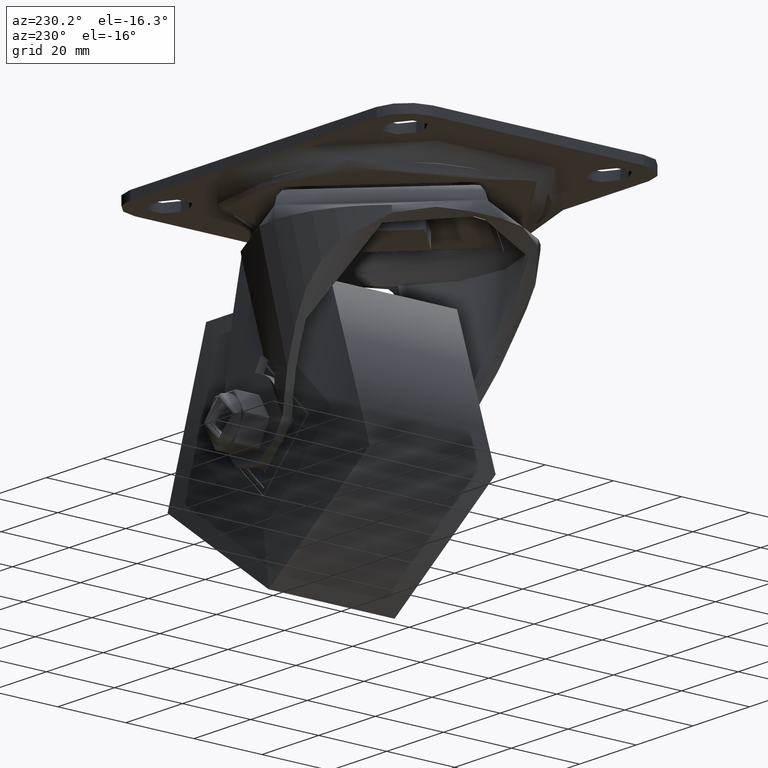
[diagram: clean part render]
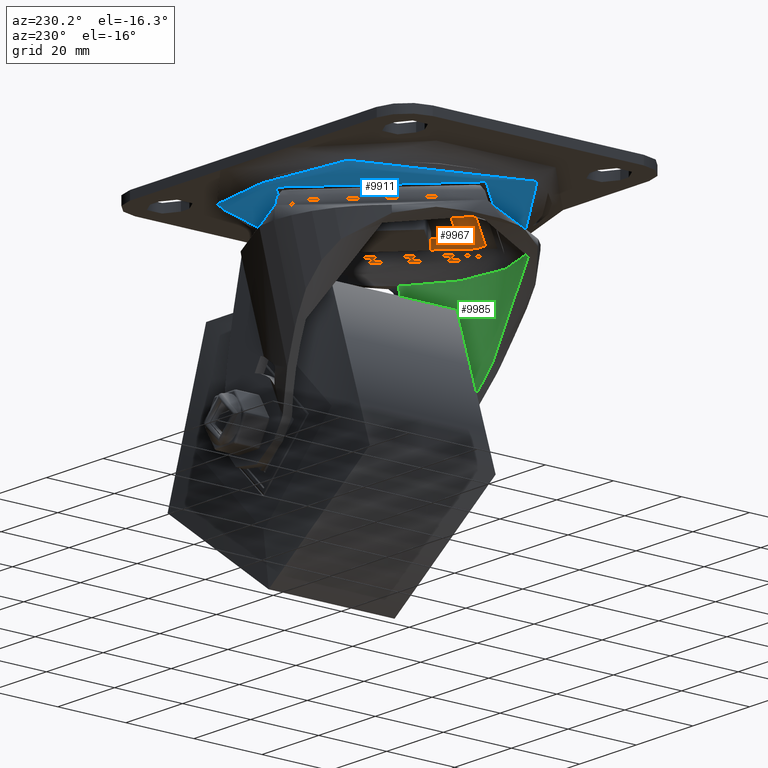
[diagram: same view with three faces highlighted in distinct colors, each labeled with its STEP entity id]
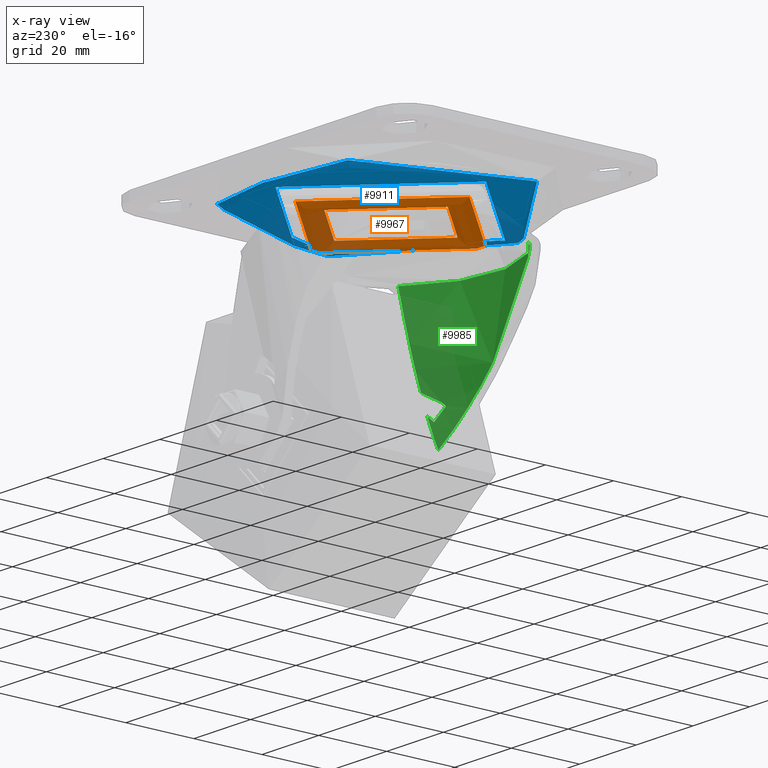
[diagram: x-ray of the same camera — body ghosted, the three highlighted faces saturated]
A machine part, auxiliary view with three faces highlighted in distinct colors.
The next image is the same camera in x-ray (body ghosted, the three faces saturated) — at least one of them is partly hidden behind the body in this view.
Their STEP definitions:

[orange] entity #9967 — the highlighted toroidal blend (fillet) surface has major radius 24.1 mm and minor (blend) radius 6.3 mm.
#2627=FACE_OUTER_BOUND('',#3252,.T.);
#3252=EDGE_LOOP('',(#7144,#7145,#7146,#7147));
#3968=CIRCLE('',#10853,27.9327535793476);
#3969=CIRCLE('',#10854,6.29999999999998);
#3970=CIRCLE('',#10855,19.7953513499938);
#4482=VERTEX_POINT('',#14827);
#4483=VERTEX_POINT('',#14829);
#5502=EDGE_CURVE('',#4482,#4482,#3968,.T.);
#5503=EDGE_CURVE('',#4482,#4483,#3969,.T.);
#5504=EDGE_CURVE('',#4483,#4483,#3970,.T.);
#7144=ORIENTED_EDGE('',*,*,#5502,.T.);
#7145=ORIENTED_EDGE('',*,*,#5503,.T.);
#7146=ORIENTED_EDGE('',*,*,#5504,.F.);
#7147=ORIENTED_EDGE('',*,*,#5503,.F.);
#9898=TOROIDAL_SURFACE('',#10852,24.1000000000001,6.29999999999998);
#9967=ADVANCED_FACE('',(#2627),#9898,.T.);
#10852=AXIS2_PLACEMENT_3D('',#14826,#12127,#12128);
#10853=AXIS2_PLACEMENT_3D('',#14828,#12129,#12130);
#10854=AXIS2_PLACEMENT_3D('',#14830,#12131,#12132);
#10855=AXIS2_PLACEMENT_3D('',#14831,#12133,#12134);
#12127=DIRECTION('center_axis',(0.,0.,1.));
#12128=DIRECTION('ref_axis',(-1.,0.,0.));
#12129=DIRECTION('center_axis',(0.,0.,-1.));
#12130=DIRECTION('ref_axis',(-1.,0.,0.));
#12131=DIRECTION('center_axis',(0.,1.,0.));
#12132=DIRECTION('ref_axis',(1.,0.,0.));
#12133=DIRECTION('center_axis',(0.,0.,-1.));
#12134=DIRECTION('ref_axis',(-1.,0.,0.));
#14826=CARTESIAN_POINT('Origin',(568.740824994599,-462.775587103942,-5.15782014433239));
#14827=CARTESIAN_POINT('',(596.673578573947,-462.775587103942,-10.1578201443323));
#14828=CARTESIAN_POINT('Origin',(568.740824994599,-462.775587103942,-10.1578201443323));
#14829=CARTESIAN_POINT('',(588.536176344593,-462.775587103942,-9.7578201443323));
#14830=CARTESIAN_POINT('Origin',(592.840824994599,-462.775587103942,-5.15782014433239));
#14831=CARTESIAN_POINT('Origin',(568.740824994599,-462.775587103942,-9.7578201443323));

[blue] entity #9911 — the highlighted toroidal blend (fillet) surface has major radius 35.4376 mm and minor (blend) radius 4.6641 mm.
#2571=FACE_OUTER_BOUND('',#3183,.T.);
#3183=EDGE_LOOP('',(#6883,#6884,#6885,#6886));
#3900=CIRCLE('',#10727,33.7552232642054);
#3902=CIRCLE('',#10730,39.1662577977539);
#3903=CIRCLE('',#10731,4.66405114248671);
#4392=VERTEX_POINT('',#14509);
#4393=VERTEX_POINT('',#14513);
#5365=EDGE_CURVE('',#4392,#4392,#3900,.T.);
#5367=EDGE_CURVE('',#4393,#4393,#3902,.T.);
#5368=EDGE_CURVE('',#4393,#4392,#3903,.T.);
#6883=ORIENTED_EDGE('',*,*,#5367,.F.);
#6884=ORIENTED_EDGE('',*,*,#5368,.T.);
#6885=ORIENTED_EDGE('',*,*,#5365,.T.);
#6886=ORIENTED_EDGE('',*,*,#5368,.F.);
#9889=TOROIDAL_SURFACE('',#10729,35.4376427997966,4.66405114248671);
#9911=ADVANCED_FACE('',(#2571),#9889,.T.);
#10727=AXIS2_PLACEMENT_3D('',#14510,#11814,#11815);
#10729=AXIS2_PLACEMENT_3D('',#14512,#11818,#11819);
#10730=AXIS2_PLACEMENT_3D('',#14514,#11820,#11821);
#10731=AXIS2_PLACEMENT_3D('',#14515,#11822,#11823);
#11814=DIRECTION('center_axis',(0.,0.,1.));
#11815=DIRECTION('ref_axis',(1.,0.,0.));
#11818=DIRECTION('center_axis',(0.,0.,1.));
#11819=DIRECTION('ref_axis',(1.,0.,0.));
#11820=DIRECTION('center_axis',(0.,0.,1.));
#11821=DIRECTION('ref_axis',(1.,0.,0.));
#11822=DIRECTION('center_axis',(0.,-1.,0.));
#11823=DIRECTION('ref_axis',(-1.,0.,0.));
#14509=CARTESIAN_POINT('',(534.985601730394,-462.775587103942,-7.88598765802908));
#14510=CARTESIAN_POINT('Origin',(568.740824994599,-462.775587103942,-7.88598765802908));
#14512=CARTESIAN_POINT('Origin',(568.740824994599,-462.775587103942,-3.5359488575134));
#14513=CARTESIAN_POINT('',(529.574567196845,-462.775587103942,-6.33787734638304));
#14514=CARTESIAN_POINT('Origin',(568.740824994599,-462.775587103942,-6.33787734638304));
#14515=CARTESIAN_POINT('Origin',(533.303182194802,-462.775587103942,-3.5359488575134));

[green] entity #9985 — the highlighted face is a freeform B-spline surface patch.
#403=ELLIPSE('',#10895,179.37129335749,31.3725198604101);
#404=ELLIPSE('',#10898,179.371291788378,31.3725196696948);
#408=ELLIPSE('',#10903,54.7656059064204,30.9710681302615);
#409=ELLIPSE('',#10904,52.5523917133022,30.9679588570872);
#421=(
BOUNDED_SURFACE()
B_SPLINE_SURFACE(2,1,((#15680,#15681),(#15682,#15683),(#15684,#15685),(#15686,
#15687),(#15688,#15689),(#15690,#15691),(#15692,#15693),(#15694,#15695),
(#15696,#15697)),.UNSPECIFIED.,.T.,.F.,.F.)
B_SPLINE_SURFACE_WITH_KNOTS((3,2,2,2,3),(2,2),(-3.14159265358979,-1.5707963267949,
0.,1.5707963267949,3.14159265358979),(-100.,100.),.UNSPECIFIED.)
GEOMETRIC_REPRESENTATION_ITEM()
RATIONAL_B_SPLINE_SURFACE(((1.,1.),(0.707106781186551,0.707106781186551),
(1.,1.),(0.707106781186551,0.707106781186551),(1.,1.),(0.707106781186551,
0.707106781186551),(1.,1.),(0.707106781186551,0.707106781186551),(1.,1.)))
REPRESENTATION_ITEM('')
SURFACE()
);
#849=B_SPLINE_CURVE_WITH_KNOTS('',3,(#15700,#15701,#15702,#15703,#15704,
#15705),.UNSPECIFIED.,.F.,.F.,(4,2,4),(1.00137294938431E-6,0.078078384702292,
0.156151408220906),.UNSPECIFIED.);
#850=B_SPLINE_CURVE_WITH_KNOTS('',3,(#15708,#15709,#15710,#15711,#15712,
#15713),.UNSPECIFIED.,.F.,.F.,(4,2,4),(-0.246727191079472,-0.123775475240054,
-1.01407444499597E-6),.UNSPECIFIED.);
#851=B_SPLINE_CURVE_WITH_KNOTS('',3,(#15717,#15718,#15719,#15720,#15721,
#15722,#15723,#15724,#15725,#15726),.UNSPECIFIED.,.F.,.F.,(4,2,2,2,4),(1.00000002167194E-6,
0.701447372373377,1.47196800400478,2.13454319892631,2.93571039240803),
 .UNSPECIFIED.);
#852=B_SPLINE_CURVE_WITH_KNOTS('',3,(#15728,#15729,#15730,#15731,#15732,
#15733),.UNSPECIFIED.,.F.,.F.,(4,2,4),(-0.290864905832209,-0.14543280657675,
-9.99999999961485E-7),.UNSPECIFIED.);
#853=B_SPLINE_CURVE_WITH_KNOTS('',3,(#15737,#15738,#15739,#15740,#15741,
#15742),.UNSPECIFIED.,.F.,.F.,(4,2,4),(9.99999925314027E-7,0.308570875780695,
0.616397692117975),.UNSPECIFIED.);
#2645=FACE_OUTER_BOUND('',#3272,.T.);
#3272=EDGE_LOOP('',(#7289,#7290,#7291,#7292,#7293,#7294,#7295,#7296,#7297,
#7298,#7299,#7300,#7301));
#3993=CIRCLE('',#10884,31.5);
#3996=CIRCLE('',#10888,31.5);
#4003=CIRCLE('',#10905,395.927952501913);
#4004=CIRCLE('',#10906,31.5);
#4530=VERTEX_POINT('',#15199);
#4531=VERTEX_POINT('',#15201);
#4535=VERTEX_POINT('',#15216);
#4553=VERTEX_POINT('',#15475);
#4554=VERTEX_POINT('',#15477);
#4557=VERTEX_POINT('',#15483);
#4572=VERTEX_POINT('',#15698);
#4573=VERTEX_POINT('',#15699);
#4574=VERTEX_POINT('',#15706);
#4575=VERTEX_POINT('',#15714);
#4576=VERTEX_POINT('',#15716);
#4577=VERTEX_POINT('',#15727);
#4578=VERTEX_POINT('',#15734);
#5556=EDGE_CURVE('',#4531,#4530,#3993,.T.);
#5564=EDGE_CURVE('',#4530,#4535,#3996,.T.);
#5595=EDGE_CURVE('',#4553,#4554,#403,.T.);
#5599=EDGE_CURVE('',#4557,#4535,#404,.T.);
#5615=EDGE_CURVE('',#4572,#4573,#849,.T.);
#5616=EDGE_CURVE('',#4574,#4572,#408,.T.);
#5617=EDGE_CURVE('',#4554,#4574,#850,.T.);
#5618=EDGE_CURVE('',#4575,#4553,#409,.T.);
#5619=EDGE_CURVE('',#4576,#4575,#851,.T.);
#5620=EDGE_CURVE('',#4577,#4576,#852,.T.);
#5621=EDGE_CURVE('',#4578,#4577,#4003,.T.);
#5622=EDGE_CURVE('',#4578,#4531,#4004,.T.);
#5623=EDGE_CURVE('',#4573,#4557,#853,.T.);
#7289=ORIENTED_EDGE('',*,*,#5615,.F.);
#7290=ORIENTED_EDGE('',*,*,#5616,.F.);
#7291=ORIENTED_EDGE('',*,*,#5617,.F.);
#7292=ORIENTED_EDGE('',*,*,#5595,.F.);
#7293=ORIENTED_EDGE('',*,*,#5618,.F.);
#7294=ORIENTED_EDGE('',*,*,#5619,.F.);
#7295=ORIENTED_EDGE('',*,*,#5620,.F.);
#7296=ORIENTED_EDGE('',*,*,#5621,.F.);
#7297=ORIENTED_EDGE('',*,*,#5622,.T.);
#7298=ORIENTED_EDGE('',*,*,#5556,.T.);
#7299=ORIENTED_EDGE('',*,*,#5564,.T.);
#7300=ORIENTED_EDGE('',*,*,#5599,.F.);
#7301=ORIENTED_EDGE('',*,*,#5623,.F.);
#9985=ADVANCED_FACE('',(#2645),#421,.T.);
#10884=AXIS2_PLACEMENT_3D('',#15202,#12204,#12205);
#10888=AXIS2_PLACEMENT_3D('',#15218,#12216,#12217);
#10895=AXIS2_PLACEMENT_3D('',#15478,#12248,#12249);
#10898=AXIS2_PLACEMENT_3D('',#15485,#12255,#12256);
#10903=AXIS2_PLACEMENT_3D('',#15707,#12268,#12269);
#10904=AXIS2_PLACEMENT_3D('',#15715,#12270,#12271);
#10905=AXIS2_PLACEMENT_3D('',#15735,#12272,#12273);
#10906=AXIS2_PLACEMENT_3D('',#15736,#12274,#12275);
#12204=DIRECTION('center_axis',(0.,0.,1.));
#12205=DIRECTION('ref_axis',(-1.,0.,0.));
#12216=DIRECTION('center_axis',(0.,0.,1.));
#12217=DIRECTION('ref_axis',(-1.,0.,0.));
#12248=DIRECTION('center_axis',(-1.,-1.06951816408119E-33,-6.12323399573676E-17));
#12249=DIRECTION('ref_axis',(6.09766967839027E-17,0.0912825795891046,-0.995825030145135));
#12255=DIRECTION('center_axis',(-1.,-1.06951817993883E-33,-6.12323399573676E-17));
#12256=DIRECTION('ref_axis',(6.09766967797402E-17,0.0912825803307047,-0.995825030077156));
#12268=DIRECTION('center_axis',(3.95082115193227E-13,0.861058086863096,
-0.508506608656824));
#12269=DIRECTION('ref_axis',(-0.221265994195392,0.495902506793645,0.83971546583858));
#12270=DIRECTION('center_axis',(-5.94251190185613E-14,-0.845090440107082,
0.534623370270716));
#12271=DIRECTION('ref_axis',(0.226525305726084,-0.520725985564265,-0.8231225509144));
#12272=DIRECTION('center_axis',(-0.999999999979429,6.39538984645764E-6,
-4.90817362671949E-7));
#12273=DIRECTION('ref_axis',(6.41419355674901E-6,0.996998048249021,-0.0774266862683689));
#12274=DIRECTION('center_axis',(0.,0.,1.));
#12275=DIRECTION('ref_axis',(-1.,0.,0.));
#15199=CARTESIAN_POINT('',(546.810403330523,-485.387676914982,-15.6578201772443));
#15201=CARTESIAN_POINT('',(541.737815588515,-446.555615371077,-15.6578201443324));
#15202=CARTESIAN_POINT('Origin',(568.740824994599,-462.775587103942,-15.6578201443324));
#15216=CARTESIAN_POINT('',(547.240824994599,-485.797315970385,-15.6578201443324));
#15218=CARTESIAN_POINT('Origin',(568.740824994599,-462.775587103942,-15.6578201443322));
#15475=CARTESIAN_POINT('',(547.240824994599,-471.641822625104,-57.4979081578165));
#15477=CARTESIAN_POINT('',(547.240824994599,-475.562081118275,-48.5671185132797));
#15478=CARTESIAN_POINT('Origin',(547.240824994599,-473.607870466029,106.274740447262));
#15483=CARTESIAN_POINT('',(547.240824994599,-477.784869007096,-42.6240890723159));
#15485=CARTESIAN_POINT('Origin',(547.240824994599,-473.607870471587,106.27473888496));
#15680=CARTESIAN_POINT('Ctrl Pts',(17906.3750526349,8256.52440624604,-98163.6222332247));
#15681=CARTESIAN_POINT('Ctrl Pts',(-16691.1037323829,-9174.6241432856,98048.4302048566));
#15682=CARTESIAN_POINT('Ctrl Pts',(17906.3750526349,8225.02440624604,-98163.6222332247));
#15683=CARTESIAN_POINT('Ctrl Pts',(-16691.1037323829,-9206.1241432856,98048.4302048566));
#15684=CARTESIAN_POINT('Ctrl Pts',(17874.8750526349,8225.02440624604,-98163.6222332247));
#15685=CARTESIAN_POINT('Ctrl Pts',(-16722.6037323829,-9206.1241432856,98048.4302048566));
#15686=CARTESIAN_POINT('Ctrl Pts',(17843.3750526349,8225.02440624604,-98163.6222332247));
#15687=CARTESIAN_POINT('Ctrl Pts',(-16754.1037323829,-9206.1241432856,98048.4302048566));
#15688=CARTESIAN_POINT('Ctrl Pts',(17843.3750526349,8256.52440624604,-98163.6222332247));
#15689=CARTESIAN_POINT('Ctrl Pts',(-16754.1037323829,-9174.6241432856,98048.4302048566));
#15690=CARTESIAN_POINT('Ctrl Pts',(17843.3750526349,8288.02440624604,-98163.6222332247));
#15691=CARTESIAN_POINT('Ctrl Pts',(-16754.1037323829,-9143.1241432856,98048.4302048566));
#15692=CARTESIAN_POINT('Ctrl Pts',(17874.8750526349,8288.02440624604,-98163.6222332247));
#15693=CARTESIAN_POINT('Ctrl Pts',(-16722.6037323829,-9143.1241432856,98048.4302048566));
#15694=CARTESIAN_POINT('Ctrl Pts',(17906.3750526349,8288.02440624604,-98163.6222332247));
#15695=CARTESIAN_POINT('Ctrl Pts',(-16691.1037323829,-9143.1241432856,98048.4302048566));
#15696=CARTESIAN_POINT('Ctrl Pts',(17906.3750526349,8256.52440624604,-98163.6222332247));
#15697=CARTESIAN_POINT('Ctrl Pts',(-16691.1037323829,-9174.6241432856,98048.4302048566));
#15698=CARTESIAN_POINT('',(544.964924302079,-471.731670556286,-46.6600390903027));
#15699=CARTESIAN_POINT('',(545.216763636761,-472.860812691696,-45.6126519268061));
#15700=CARTESIAN_POINT('Ctrl Pts',(544.96492426365,-471.731670429632,-46.6600389578191));
#15701=CARTESIAN_POINT('Ctrl Pts',(544.998768618794,-471.91322140349,-46.4766595699213));
#15702=CARTESIAN_POINT('Ctrl Pts',(545.03655091842,-472.098264161701,-46.2975967774436));
#15703=CARTESIAN_POINT('Ctrl Pts',(545.120397837223,-472.474925765027,-45.9482865717066));
#15704=CARTESIAN_POINT('Ctrl Pts',(545.166429998176,-472.66639982472,-45.7781724506083));
#15705=CARTESIAN_POINT('Ctrl Pts',(545.216763580127,-472.860812639181,-45.6126518479017));
#15706=CARTESIAN_POINT('',(546.700552381399,-473.855790723364,-50.2568280586881));
#15707=CARTESIAN_POINT('Origin',(571.168140181105,-461.552639842719,-29.423809346701));
#15708=CARTESIAN_POINT('Ctrl Pts',(547.240824994599,-475.562081118275,-48.5671185132801));
#15709=CARTESIAN_POINT('Ctrl Pts',(547.124441486431,-475.260307538224,-48.8188622400212));
#15710=CARTESIAN_POINT('Ctrl Pts',(547.021710434444,-474.966515465468,-49.0853442631446));
#15711=CARTESIAN_POINT('Ctrl Pts',(546.841654490751,-474.39578834528,-49.6494881920303));
#15712=CARTESIAN_POINT('Ctrl Pts',(546.764793174115,-474.119904725184,-49.9464382860346));
#15713=CARTESIAN_POINT('Ctrl Pts',(546.700552358489,-473.855790713368,-50.2568280454406));
#15714=CARTESIAN_POINT('',(541.284755425902,-459.607384740845,-38.4748183087896));
#15715=CARTESIAN_POINT('Origin',(573.042984483743,-460.608042423532,-40.0565790182554));
#15716=CARTESIAN_POINT('',(547.240824994599,-440.045115516573,-19.2746173284011));
#15717=CARTESIAN_POINT('Ctrl Pts',(547.240824994599,-440.045115516573,-19.2746173284009));
#15718=CARTESIAN_POINT('Ctrl Pts',(545.723518864751,-441.615401864744,-20.1106516770693));
#15719=CARTESIAN_POINT('Ctrl Pts',(544.473759094895,-443.302556684434,-21.1201191504832));
#15720=CARTESIAN_POINT('Ctrl Pts',(542.409422839898,-446.952808160098,-23.6728885385444));
#15721=CARTESIAN_POINT('Ctrl Pts',(541.684346584246,-448.861668441152,-25.2149413394688));
#15722=CARTESIAN_POINT('Ctrl Pts',(540.867329235,-452.276062315872,-28.4684021412755));
#15723=CARTESIAN_POINT('Ctrl Pts',(540.708031608126,-453.769799128993,-30.0961917666563));
#15724=CARTESIAN_POINT('Ctrl Pts',(540.703159109719,-456.821357144752,-33.921977652111));
#15725=CARTESIAN_POINT('Ctrl Pts',(540.929393038003,-458.313931235604,-36.1510904291106));
#15726=CARTESIAN_POINT('Ctrl Pts',(541.284755425902,-459.607384740845,-38.4748183087894));
#15727=CARTESIAN_POINT('',(547.240824994599,-439.808934416077,-16.3754676303532));
#15728=CARTESIAN_POINT('Ctrl Pts',(547.240824994599,-439.808934416076,-16.3754676303533));
#15729=CARTESIAN_POINT('Ctrl Pts',(547.240824994599,-439.846469962161,-16.8587861996102));
#15730=CARTESIAN_POINT('Ctrl Pts',(547.240824994599,-439.884904477175,-17.3420940794862));
#15731=CARTESIAN_POINT('Ctrl Pts',(547.240824994599,-439.963608886177,-18.3084409406299));
#15732=CARTESIAN_POINT('Ctrl Pts',(547.240824994599,-440.00388862699,-18.7916008649041));
#15733=CARTESIAN_POINT('Ctrl Pts',(547.240824994599,-440.045115516573,-19.2746173284011));
#15734=CARTESIAN_POINT('',(547.240824994599,-439.753858237499,-15.6578201443324));
#15735=CARTESIAN_POINT('Origin',(547.238285436077,-834.548330307714,14.27992173289));
#15736=CARTESIAN_POINT('Origin',(568.740824994599,-462.775587103942,-15.6578201443324));
#15737=CARTESIAN_POINT('Ctrl Pts',(545.216763655416,-472.860812740294,-45.6126519895602));
#15738=CARTESIAN_POINT('Ctrl Pts',(545.41569979079,-473.629197889853,-44.958462357084));
#15739=CARTESIAN_POINT('Ctrl Pts',(545.680098253584,-474.436747860675,-44.381759545019));
#15740=CARTESIAN_POINT('Ctrl Pts',(546.356504427121,-476.100021161568,-43.3819656917704));
#15741=CARTESIAN_POINT('Ctrl Pts',(546.763050253409,-476.942844732186,-42.9659867053259));
#15742=CARTESIAN_POINT('Ctrl Pts',(547.240824994599,-477.784869007096,-42.6240890723161));